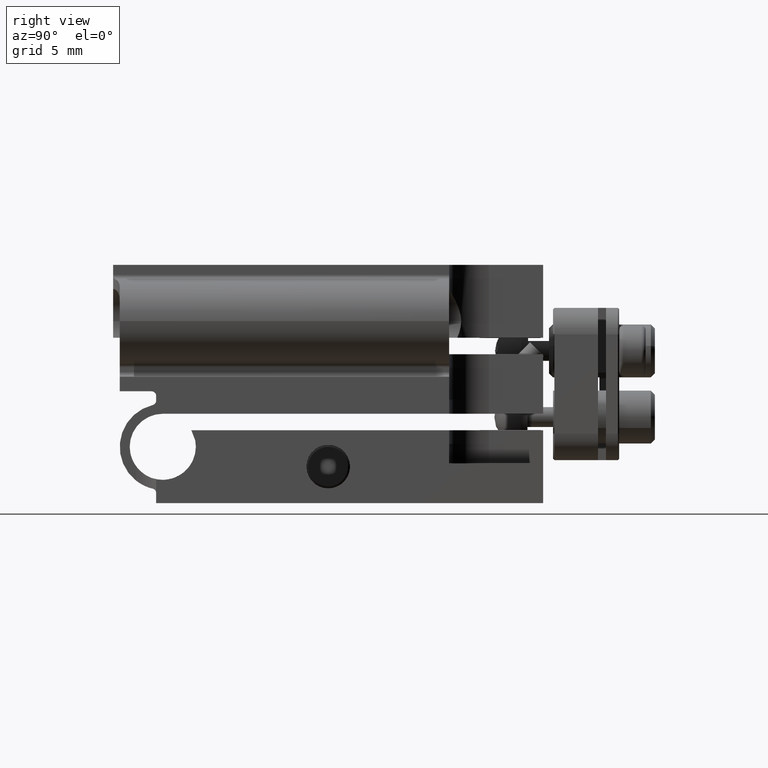
[diagram: clean part render]
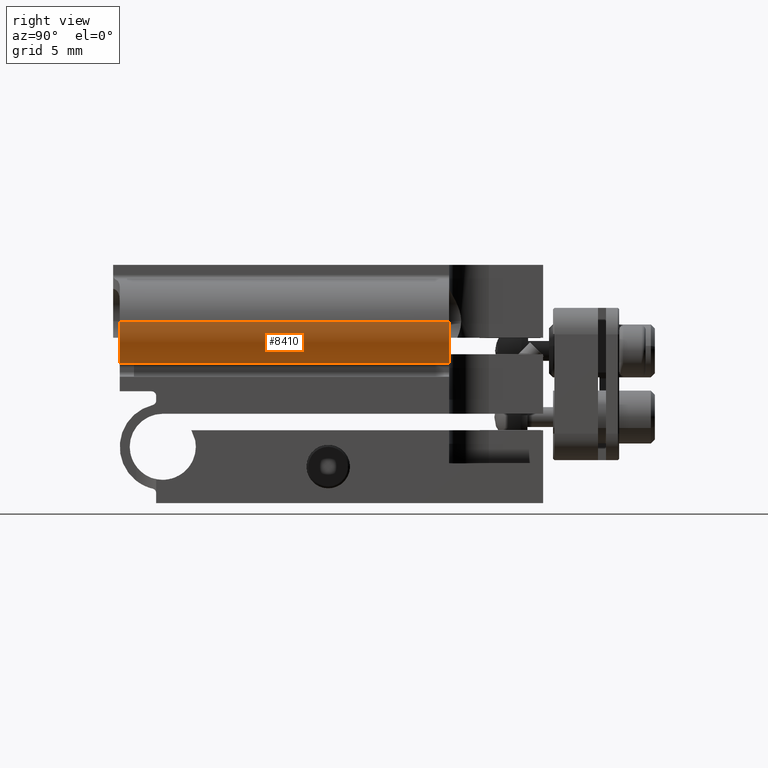
[diagram: same view with one face highlighted and labeled with its STEP entity id]
A machine part, right view. The second image highlights one B-rep face of the part: STEP entity #8410.
In plain terms, the highlighted cylindrical surface (partial cylindrical patch) has radius 3.25 mm, axis along (-0, -1, 0).
Its self-contained STEP definition (entity closure, byte-faithful):
#360 = CARTESIAN_POINT ( 'NONE',  ( 13.26736111111115157, 16.25000000000006040, 1.591890292413144392 ) ) ;
#890 = EDGE_CURVE ( 'NONE', #9144, #1040, #4425, .T. ) ;
#1040 = VERTEX_POINT ( 'NONE', #5435 ) ;
#1628 = VERTEX_POINT ( 'NONE', #6627 ) ;
#1637 = DIRECTION ( 'NONE',  ( -1.408764703807894679E-15, -1.000000000000000000, 5.551115123125783935E-17 ) ) ;
#1741 = CARTESIAN_POINT ( 'NONE',  ( 12.50000000000003908, 9.150000000000028777, 4.749999999999998224 ) ) ;
#1812 = FACE_OUTER_BOUND ( 'NONE', #2375, .T. ) ;
#2283 = CARTESIAN_POINT ( 'NONE',  ( 15.75000000000004263, 16.25000000000006750, 4.749999999999998224 ) ) ;
#2375 = EDGE_LOOP ( 'NONE', ( #5653, #6375, #4188, #9511 ) ) ;
#2631 = EDGE_CURVE ( 'NONE', #10314, #9144, #5604, .T. ) ;
#2772 = DIRECTION ( 'NONE',  ( -1.763571790789901662E-15, -1.000000000000000000, 5.551115123125782702E-17 ) ) ;
#2795 = CARTESIAN_POINT ( 'NONE',  ( 12.49999999999998401, -15.74999999999994138, 4.750000000000000000 ) ) ;
#3739 = CYLINDRICAL_SURFACE ( 'NONE', #7254, 3.250000000000001332 ) ;
#4188 = ORIENTED_EDGE ( 'NONE', *, *, #9483, .T. ) ;
#4425 = CIRCLE ( 'NONE', #10835, 3.249999999999999556 ) ;
#4484 = CARTESIAN_POINT ( 'NONE',  ( 12.50000000000004086, 16.25000000000006040, 4.749999999999998224 ) ) ;
#4904 = CARTESIAN_POINT ( 'NONE',  ( 13.26736111111114980, 9.150000000000030553, 1.591890292413145280 ) ) ;
#5066 = LINE ( 'NONE', #2283, #6897 ) ;
#5435 = CARTESIAN_POINT ( 'NONE',  ( 15.75000000000003908, 9.150000000000025224, 4.749999999999999112 ) ) ;
#5604 = LINE ( 'NONE', #360, #6415 ) ;
#5653 = ORIENTED_EDGE ( 'NONE', *, *, #890, .T. ) ;
#5655 = DIRECTION ( 'NONE',  ( 1.763571790789901662E-15, 1.000000000000000000, -5.551115123125782702E-17 ) ) ;
#5981 = AXIS2_PLACEMENT_3D ( 'NONE', #2795, #7952, #10538 ) ;
#6375 = ORIENTED_EDGE ( 'NONE', *, *, #10469, .T. ) ;
#6381 = CARTESIAN_POINT ( 'NONE',  ( 13.26736111111109295, -15.74999999999994138, 1.591890292413146168 ) ) ;
#6415 = VECTOR ( 'NONE', #5655, 1000.000000000000000 ) ;
#6627 = CARTESIAN_POINT ( 'NONE',  ( 15.74999999999998224, -15.74999999999994849, 4.749999999999999112 ) ) ;
#6897 = VECTOR ( 'NONE', #9487, 1000.000000000000000 ) ;
#7254 = AXIS2_PLACEMENT_3D ( 'NONE', #4484, #2772, #8779 ) ;
#7952 = DIRECTION ( 'NONE',  ( 1.831867990631508292E-15, 1.000000000000000000, 7.792911615157350690E-17 ) ) ;
#8410 = ADVANCED_FACE ( 'NONE', ( #1812 ), #3739, .T. ) ;
#8779 = DIRECTION ( 'NONE',  ( 1.000000000000000000, 2.135044278125300159E-15, 0.000000000000000000 ) ) ;
#9144 = VERTEX_POINT ( 'NONE', #4904 ) ;
#9337 = DIRECTION ( 'NONE',  ( 1.000000000000000000, 2.135044278125301343E-15, 0.000000000000000000 ) ) ;
#9483 = EDGE_CURVE ( 'NONE', #1628, #10314, #10913, .T. ) ;
#9487 = DIRECTION ( 'NONE',  ( -1.763571790789901662E-15, -1.000000000000000000, 5.551115123125782702E-17 ) ) ;
#9511 = ORIENTED_EDGE ( 'NONE', *, *, #2631, .T. ) ;
#10314 = VERTEX_POINT ( 'NONE', #6381 ) ;
#10469 = EDGE_CURVE ( 'NONE', #1040, #1628, #5066, .T. ) ;
#10538 = DIRECTION ( 'NONE',  ( 0.000000000000000000, 0.000000000000000000, -1.000000000000000000 ) ) ;
#10835 = AXIS2_PLACEMENT_3D ( 'NONE', #1741, #1637, #9337 ) ;
#10913 = CIRCLE ( 'NONE', #5981, 3.250000000000000000 ) ;